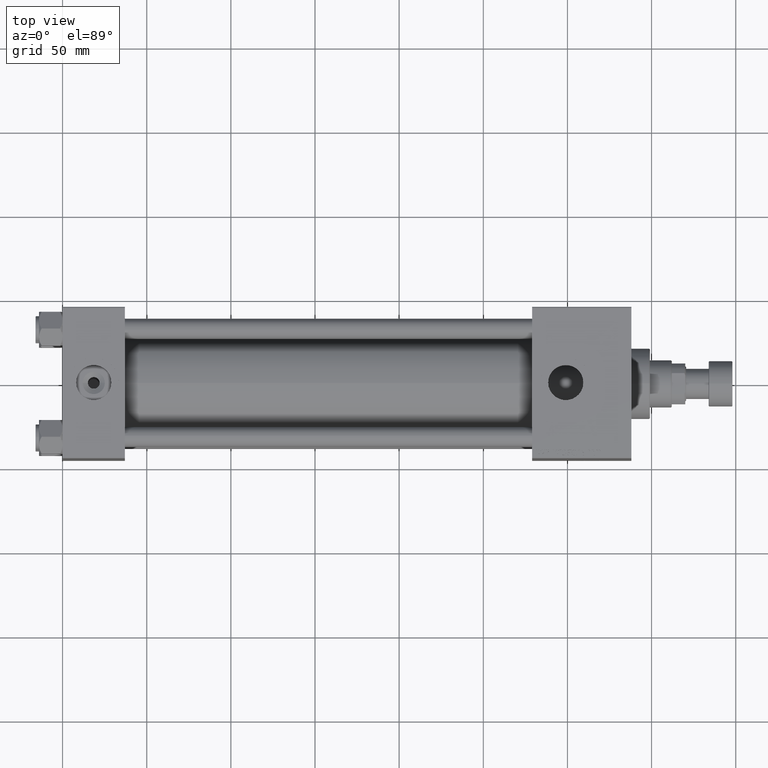
[diagram: clean part render]
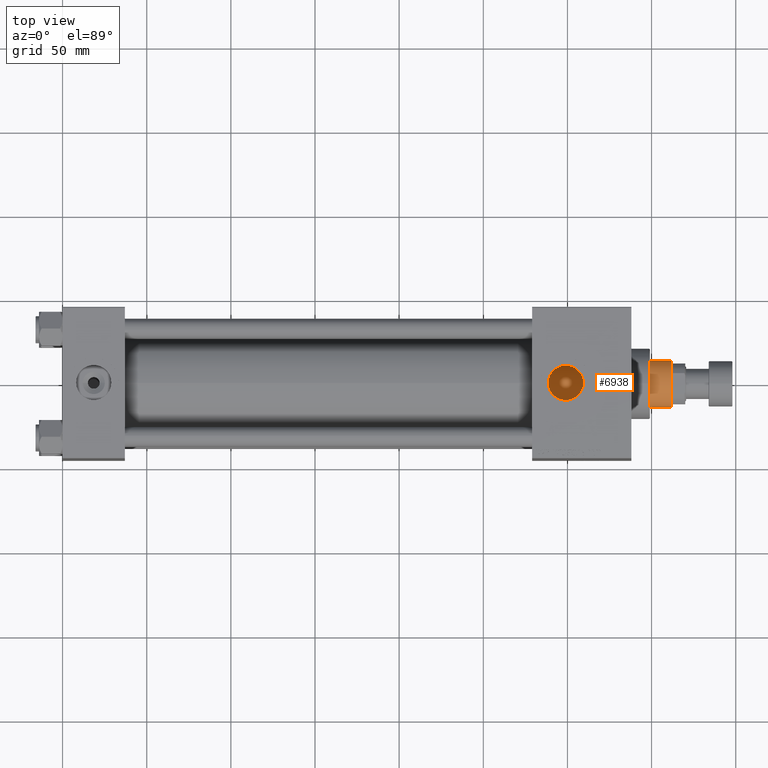
[diagram: same view with one face highlighted and labeled with its STEP entity id]
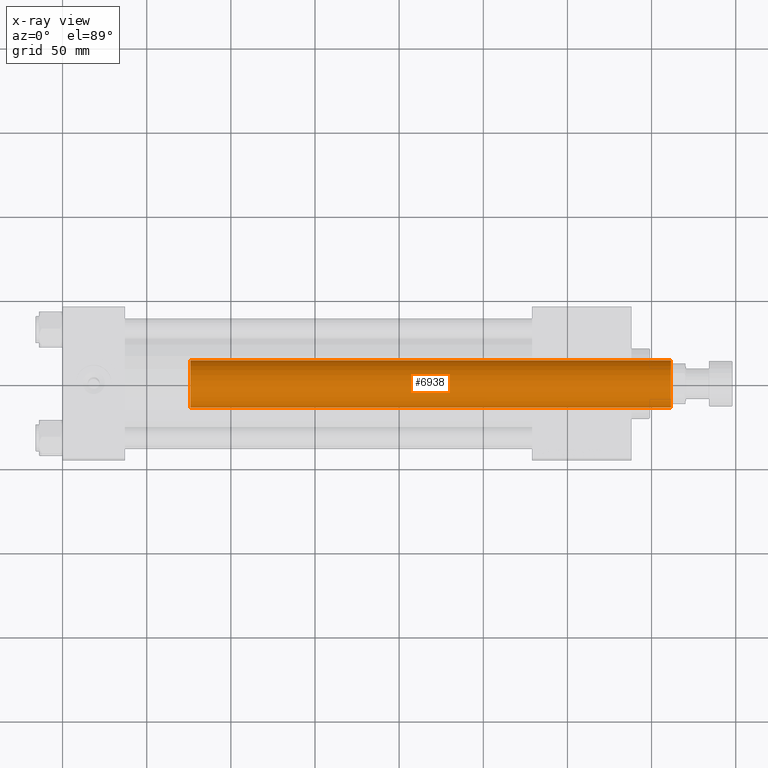
[diagram: x-ray of the same camera — body ghosted, the highlighted face saturated]
A machine part, top view. The second image highlights one B-rep face of the part: STEP entity #6938.
The next image is the same camera in x-ray: the body ghosted, the highlighted face saturated — about 0% of this face is hidden behind the body in this view.
In plain terms, the highlighted cylindrical surface (edge-blend (fillet) strip) has radius 14 mm, axis along (-1, 0, 0).
Its self-contained STEP definition (entity closure, byte-faithful):
#225 = VECTOR ( 'NONE', #17100, 1000.000000000000000 ) ;
#900 = CIRCLE ( 'NONE', #6833, 14.00000000000000178 ) ;
#1330 = VERTEX_POINT ( 'NONE', #47319 ) ;
#1601 = LINE ( 'NONE', #5860, #225 ) ;
#2831 = VERTEX_POINT ( 'NONE', #23561 ) ;
#3776 = EDGE_LOOP ( 'NONE', ( #4062, #29443, #17950, #32717 ) ) ;
#4062 = ORIENTED_EDGE ( 'NONE', *, *, #31092, .F. ) ;
#5310 = DIRECTION ( 'NONE',  ( -0.000000000000000000, -0.000000000000000000, -1.000000000000000000 ) ) ;
#5667 = DIRECTION ( 'NONE',  ( -1.000000000000000000, 0.000000000000000000, 0.000000000000000000 ) ) ;
#5860 = CARTESIAN_POINT ( 'NONE',  ( 14.00000000000000178, 1.714505518806294835E-15, 324.9999999999999432 ) ) ;
#6833 = AXIS2_PLACEMENT_3D ( 'NONE', #9728, #22008, #16104 ) ;
#6938 = ADVANCED_FACE ( 'NONE', ( #29707 ), #38492, .T. ) ;
#9702 = EDGE_CURVE ( 'NONE', #15309, #19604, #43484, .T. ) ;
#9728 = CARTESIAN_POINT ( 'NONE',  ( 0.000000000000000000, 0.000000000000000000, 39.00000000000000000 ) ) ;
#9732 = EDGE_CURVE ( 'NONE', #2831, #1330, #900, .T. ) ;
#10320 = CARTESIAN_POINT ( 'NONE',  ( -14.00000000000000178, 0.000000000000000000, 324.4999999999999432 ) ) ;
#14519 = DIRECTION ( 'NONE',  ( 0.000000000000000000, 0.000000000000000000, -1.000000000000000000 ) ) ;
#15309 = VERTEX_POINT ( 'NONE', #25901 ) ;
#16104 = DIRECTION ( 'NONE',  ( 1.000000000000000000, 0.000000000000000000, 0.000000000000000000 ) ) ;
#17100 = DIRECTION ( 'NONE',  ( -0.000000000000000000, -0.000000000000000000, -1.000000000000000000 ) ) ;
#17950 = ORIENTED_EDGE ( 'NONE', *, *, #51738, .T. ) ;
#19062 = DIRECTION ( 'NONE',  ( 1.000000000000000000, 0.000000000000000000, 0.000000000000000000 ) ) ;
#19604 = VERTEX_POINT ( 'NONE', #10320 ) ;
#22008 = DIRECTION ( 'NONE',  ( 0.000000000000000000, 0.000000000000000000, 1.000000000000000000 ) ) ;
#22750 = CARTESIAN_POINT ( 'NONE',  ( 0.000000000000000000, 0.000000000000000000, 324.9999999999999432 ) ) ;
#23561 = CARTESIAN_POINT ( 'NONE',  ( -14.00000000000000178, 0.000000000000000000, 39.00000000000000000 ) ) ;
#25863 = CARTESIAN_POINT ( 'NONE',  ( -14.00000000000000178, 0.000000000000000000, 324.9999999999999432 ) ) ;
#25901 = CARTESIAN_POINT ( 'NONE',  ( 14.00000000000000178, 1.714505518806294835E-15, 324.4999999999999432 ) ) ;
#29021 = AXIS2_PLACEMENT_3D ( 'NONE', #30547, #14519, #19062 ) ;
#29029 = AXIS2_PLACEMENT_3D ( 'NONE', #22750, #51014, #5667 ) ;
#29443 = ORIENTED_EDGE ( 'NONE', *, *, #9702, .T. ) ;
#29707 = FACE_OUTER_BOUND ( 'NONE', #3776, .T. ) ;
#30547 = CARTESIAN_POINT ( 'NONE',  ( 0.000000000000000000, 0.000000000000000000, 324.4999999999999432 ) ) ;
#31092 = EDGE_CURVE ( 'NONE', #15309, #1330, #1601, .T. ) ;
#32717 = ORIENTED_EDGE ( 'NONE', *, *, #9732, .T. ) ;
#33867 = LINE ( 'NONE', #25863, #41190 ) ;
#38492 = CYLINDRICAL_SURFACE ( 'NONE', #29029, 14.00000000000000178 ) ;
#41190 = VECTOR ( 'NONE', #5310, 1000.000000000000000 ) ;
#43484 = CIRCLE ( 'NONE', #29021, 14.00000000000000178 ) ;
#47319 = CARTESIAN_POINT ( 'NONE',  ( 14.00000000000000178, 1.714505518806294835E-15, 39.00000000000000000 ) ) ;
#51014 = DIRECTION ( 'NONE',  ( -0.000000000000000000, -0.000000000000000000, -1.000000000000000000 ) ) ;
#51738 = EDGE_CURVE ( 'NONE', #19604, #2831, #33867, .T. ) ;